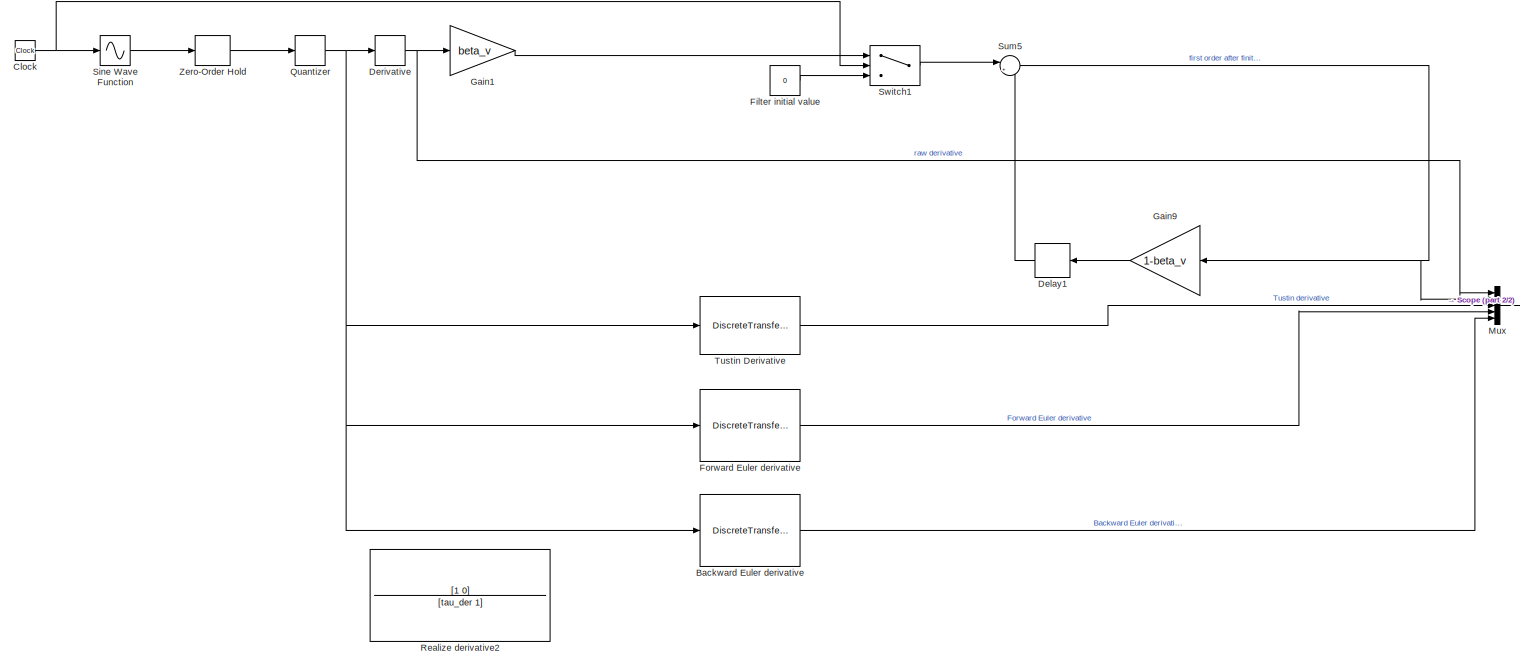
[diagram: root canvas - part 1/2, most of the canvas]
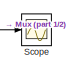
[diagram: root canvas - part 2/2, middle right region]
MODEL slx_1c04d28b3da9
KIND model
CONFIG AbsTol = auto
CONFIG EnableMultiTasking = off
CONFIG FixedStep = T_s
CONFIG InitFcn = filter_init\n
CONFIG MaxStep = auto
CONFIG MinStep = auto
CONFIG RelTol = 1e-3
CONFIG SampleTimeConstraint = Unconstrained
CONFIG SolverName = FixedStepDiscrete
CONFIG StartTime = 0.0
CONFIG StopTime = 1
BLOCK [DiscreteTransferFcn] Backward Euler derivative
  Denominator = den_filt_be
  InitialStates = 1
  InputPortMap = u0
  Numerator = num_filt_be
  SampleTime = T_s
BLOCK [Clock] Clock
BLOCK [Delay] Delay1
  DelayLength = 1
  InitialCondition = 0
  InputPortMap = u0
  SampleTime = T_s
BLOCK [Derivative] Derivative
  NameLocation = top
BLOCK [Constant] Filter initial value
  NameLocation = top
  Value = 0
BLOCK [DiscreteTransferFcn] Forward Euler derivative
  Denominator = den_filt_fe
  InitialStates = 1
  InputPortMap = u0
  Numerator = num_filt_fe
  SampleTime = T_s
BLOCK [Gain] Gain1
  Gain = beta_v
  NameLocation = top
BLOCK [Gain] Gain9
  Gain = 1-beta_v
BLOCK [Mux] Mux
  DisplayOption = bar
  Inputs = 5
BLOCK [Quantizer] Quantizer
  NameLocation = top
  QuantizationInterval = 2*pi/(2^N_e)
BLOCK [TransferFcn] Realize derivative2
  Commented = through
  Denominator = [tau_der 1]
  Numerator = [1 0]
BLOCK [Scope] Scope
  Floating = off
  NumInputPorts = 1
  ScopeSpecificationString = Simulink.scopes.TimeScopeBlockCfg('CurrentConfiguration', extmgr.ConfigurationSet(extmgr.Configuration('Core','General UI',true),extmgr.Configuration('Core','Source UI',true),extmgr.Configuration('Sources','WiredSimulink',true),extmgr.Configuration('Visuals','Time Domain',true,'SerializedDisplays',{struct('MinYLimReal','-7.71958','MaxYLimReal','7.0266','YLabelReal','','MinYLimMag','0.00000','MaxYL...<+1514ch>
BLOCK [Sin] Sine Wave Function
  Frequency = 2*pi
  SampleTime = 0
  TimeSource = Use external signal
BLOCK [Sum] Sum5
  Inputs = |++
  NameLocation = top
BLOCK [Switch] Switch1
  Criteria = u2 > Threshold
  InputSameDT = off
  NameLocation = top
  SaturateOnIntegerOverflow = off
BLOCK [DiscreteTransferFcn] Tustin Derivative
  Denominator = den_filt
  InitialStates = 1
  InputPortMap = u0
  Numerator = num_filt
  SampleTime = T_s
BLOCK [ZeroOrderHold] Zero-Order Hold
  SampleTime = T_s
LINE Backward Euler derivative:1 -> Mux:5
NET Clock:1 -> Sine Wave Function:1, Switch1:2
LINE Delay1:1 -> Sum5:2
NET Derivative:1 -> Gain1:1, Mux:1
LINE Filter initial value:1 -> Switch1:3
LINE Forward Euler derivative:1 -> Mux:4
LINE Gain1:1 -> Switch1:1
LINE Gain9:1 -> Delay1:1
LINE Mux:1 -> Scope:1
NET Quantizer:1 -> Backward Euler derivative:1, Derivative:1, Forward Euler derivative:1, Tustin Derivative:1
LINE Sine Wave Function:1 -> Zero-Order Hold:1
NET Sum5:1 -> Gain9:1, Mux:2
LINE Switch1:1 -> Sum5:1
LINE Tustin Derivative:1 -> Mux:3
LINE Zero-Order Hold:1 -> Quantizer:1
note: NET lines group one-source signal fan-out (src -> all destinations, sorted); 1:1 wires keep LINE
